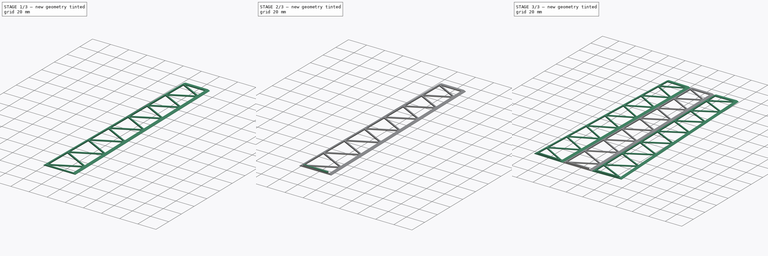
[diagram: build sequence overview — one tinted view per stage of 3, left to right]
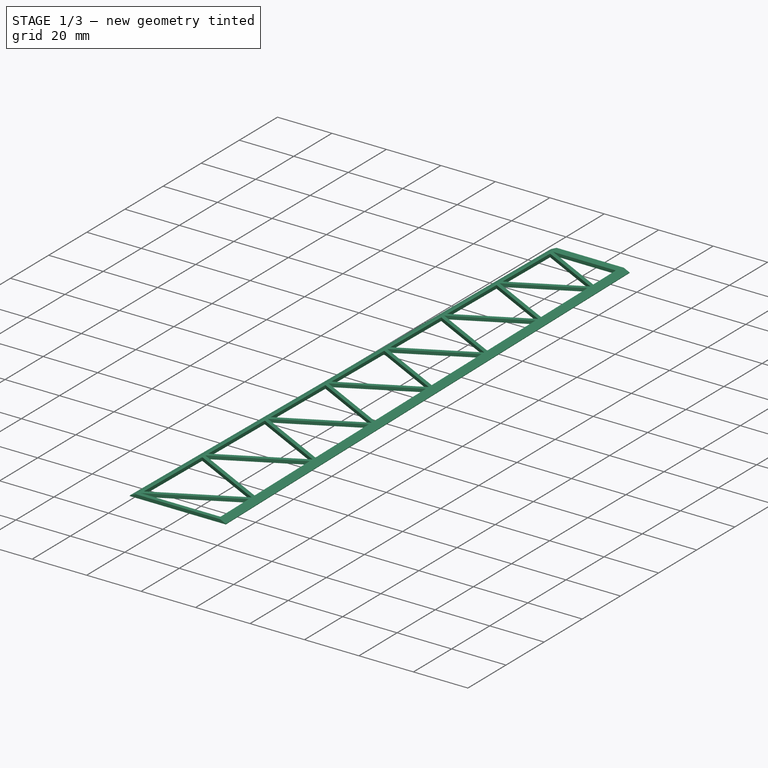
[diagram: stage 1 of 3 — iso view after this stage's code; geometry added in this stage tinted green]
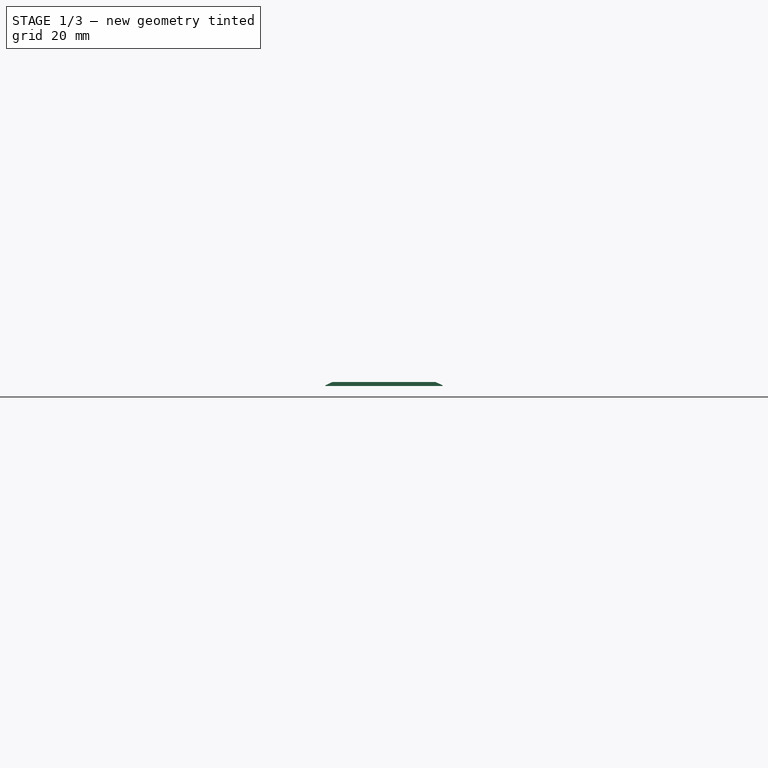
[diagram: stage 1 of 3 — front view after this stage's code; geometry added in this stage tinted green]
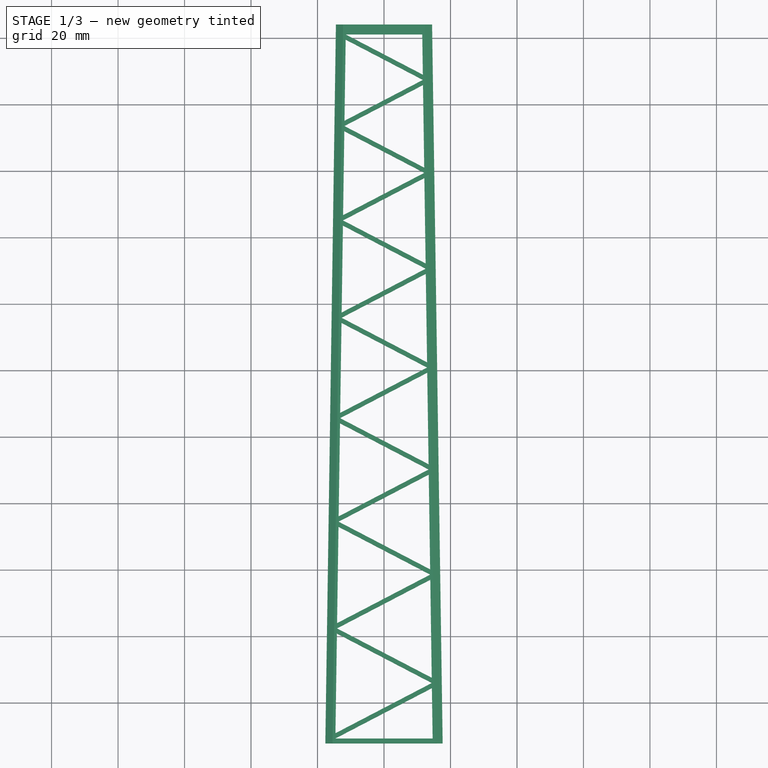
[diagram: stage 1 of 3 — top view after this stage's code; geometry added in this stage tinted green]
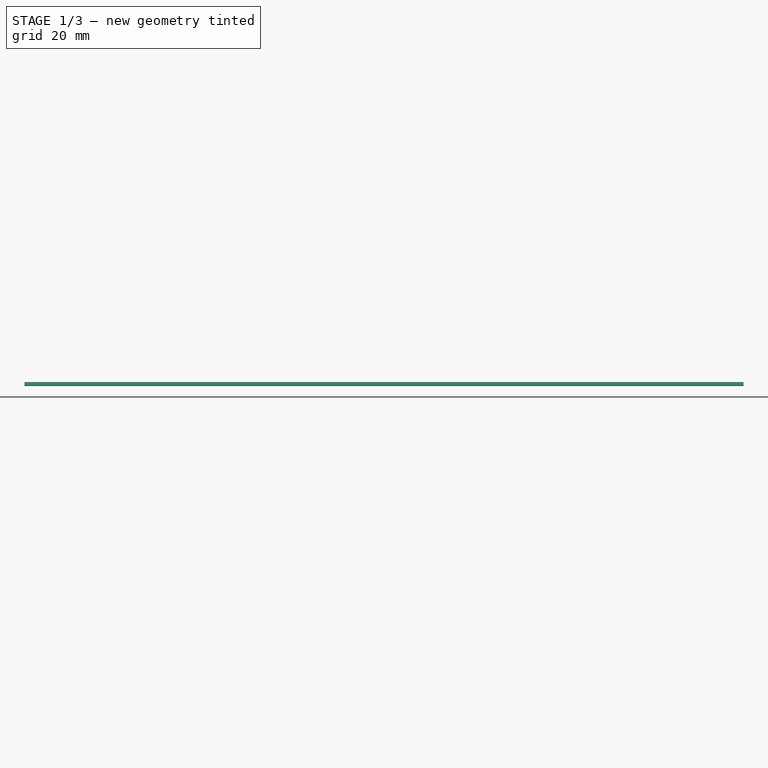
[diagram: stage 1 of 3 — right view after this stage's code; geometry added in this stage tinted green]
FCSTD DOCUMENT  (FreeCAD 1.0R39319 (Git))
Label: OMJK_30m_lystaarn_3
License: All rights reserved
LicenseURL: http://en.wikipedia.org/wiki/All_rights_reserved
objects: Sketcher::SketchObject×4, PartDesign::Body×2, PartDesign::Pad×2, PartDesign::Mirrored×2, Image::ImagePlane×1, App::VarSet×1, PartDesign::SubShapeBinder×1, PartDesign::Chamfer×1
note: 24 computed .brp shape members not serialized (recipe doc carries the construction recipe); baked Part::Feature solids carry a one-line shape summary decoded from their .brp

FEATURE [Image::ImagePlane] Taarn
  Placement = pos=(-63.4214,156.887,0) rot=(0,0,1;0.012217rad)
  XSize = 407.33
  YSize = 576.174
FEATURE [App::VarSet] VarSet
  IronLegWidth = 3
  IronSupportWidth = 1.5
  TowerBottomWidth = 45.5
  TowerHeight = 662.6
  TowerTopWidth = 25.97
  expr: TowerHeight = 353.87 + 308.73
FEATURE [Sketcher::SketchObject] Sketch  label="Basic Measurements"
  ArcFitTolerance = 1e-06
  AttachmentSupport = -> [XY_Plane]
  FullyConstrained = false
  MakeInternals = false
  MapMode = 5
  sketch-geometry (6):
    g0: LineSegment StartX=-22.75 StartY=0 StartZ=0 EndX=22.75 EndY=0 EndZ=0
    g1: LineSegment StartX=0 StartY=0 StartZ=0 EndX=0 EndY=353.87 EndZ=0
    g2: LineSegment StartX=-157.614 StartY=302.942 StartZ=0 EndX=-131.644 EndY=302.942 EndZ=0
    g3: LineSegment StartX=-144.629 StartY=302.942 StartZ=0 EndX=-143.643 EndY=-5.78841 EndZ=0
    g4: LineSegment StartX=-96.211 StartY=303.16 StartZ=0 EndX=-48.4821 EndY=303.16 EndZ=0
    g5: LineSegment StartX=-48.4821 StartY=327.388 StartZ=0 EndX=-48.4821 EndY=303.16 EndZ=0
  constraints (14):
    c: PointOnObject(g0,g-1)
    c: Coincident(g1,g-1)
    c: Vertical(g1)
    c: Symmetric(g0,g0,g1)
    c: DistanceX(g0,g0) = 45.5
    c: Horizontal(g2)
    c: DistanceX(g2,g2) = 25.97
    c: Symmetric(g2,g2,g3)
    c: DistanceY(g3,g3) = 308.73
    c: DistanceY(g1,g1) = 353.87
    c: Horizontal(g4)
    c: DistanceX(g4,g4) = 47.7289
    c: Coincident(g5,g4)
    c: DistanceY(g5,g5) = 24.2284
FEATURE [Sketcher::SketchObject] Sketch001  label="Basic Lattice Mast"
  ArcFitTolerance = 1e-06
  AttachmentSupport = -> [XY_Plane]
  FullyConstrained = true
  MakeInternals = false
  MapMode = 5
  expr: Constraints[128] = VarSet.IronSupportWidth
  expr: Constraints[56] = VarSet.IronSupportWidth * 2
  expr: Constraints[7] = VarSet.TowerTopWidth
  expr: Constraints[8] = VarSet.TowerBottomWidth
  expr: Constraints[91] = VarSet.IronSupportWidth * 2
  expr: Constraints[9] = VarSet.TowerHeight
  sketch-geometry (50):
    g0: LineSegment StartX=-22.75 StartY=0 StartZ=0 EndX=-12.985 EndY=662.6 EndZ=0
    g1: LineSegment StartX=-12.985 StartY=662.6 StartZ=0 EndX=12.985 EndY=662.6 EndZ=0
    g2: LineSegment StartX=12.985 StartY=662.6 StartZ=0 EndX=22.75 EndY=0 EndZ=0
    g3: LineSegment StartX=22.75 StartY=0 StartZ=0 EndX=-22.75 EndY=0 EndZ=0
    g4: LineSegment StartX=-22.7279 StartY=1.5 StartZ=0 EndX=22.3814 EndY=25.0125 EndZ=0
    g5: LineSegment StartX=22.3814 StartY=25.0125 StartZ=0 EndX=-22.0402 EndY=48.1665 EndZ=0
    g6: LineSegment StartX=-22.0402 StartY=48.1665 StartZ=0 EndX=21.7041 EndY=70.9675 EndZ=0
    g7: LineSegment StartX=21.7041 StartY=70.9675 StartZ=0 EndX=-21.3732 EndY=93.4209 EndZ=0
    g8: LineSegment [constr] StartX=22.3814 StartY=25.0125 StartZ=0 EndX=-22.3814 EndY=25.0125 EndZ=0
    g9: ArcOfCircle [constr] CenterX=22.3814 CenterY=25.0125 CenterZ=0 NormalX=0 NormalY=0 NormalZ=1 AngleXU=0 Radius=30 StartAngle=2.6611 EndAngle=3.62208
    g10: LineSegment [constr] StartX=-4.22167 StartY=38.8789 StartZ=0 EndX=-4.22167 EndY=11.1461 EndZ=0
    g11: LineSegment StartX=-21.3732 StartY=93.4209 StartZ=0 EndX=21.0474 EndY=115.532 EndZ=0
    g12: LineSegment StartX=21.0474 StartY=115.532 StartZ=0 EndX=-20.7265 EndY=137.306 EndZ=0
    g13: LineSegment StartX=-20.7265 StartY=137.306 StartZ=0 EndX=20.4105 EndY=158.748 EndZ=0
    g14: LineSegment StartX=20.4105 StartY=158.748 StartZ=0 EndX=-20.0993 EndY=179.863 EndZ=0
    g15: LineSegment StartX=-20.0993 StartY=179.863 StartZ=0 EndX=19.7929 EndY=200.656 EndZ=0
    g16: LineSegment StartX=19.7929 StartY=200.656 StartZ=0 EndX=-19.4911 EndY=221.132 EndZ=0
    g17: LineSegment StartX=-19.4469 StartY=224.132 StartZ=0 EndX=19.1504 EndY=244.25 EndZ=0
    g18: LineSegment StartX=19.1504 StartY=244.25 StartZ=0 EndX=-18.8584 EndY=264.062 EndZ=0
    g19: LineSegment StartX=-18.8584 StartY=264.062 StartZ=0 EndX=18.5709 EndY=283.571 EndZ=0
    g20: LineSegment StartX=18.5709 StartY=283.571 StartZ=0 EndX=-18.2878 EndY=302.783 EndZ=0
    g21: LineSegment StartX=-18.2878 StartY=302.783 StartZ=0 EndX=18.0089 EndY=321.702 EndZ=0
    g22: LineSegment StartX=18.0089 StartY=321.702 StartZ=0 EndX=-17.7344 EndY=340.333 EndZ=0
    g23: LineSegment StartX=-17.7344 StartY=340.333 StartZ=0 EndX=17.464 EndY=358.68 EndZ=0
    g24: LineSegment StartX=17.464 StartY=358.68 StartZ=0 EndX=-17.1977 EndY=376.747 EndZ=0
    g25: LineSegment StartX=-17.1977 StartY=376.747 StartZ=0 EndX=16.9355 EndY=394.538 EndZ=0
    g26: LineSegment StartX=16.9355 StartY=394.538 StartZ=0 EndX=-16.6773 EndY=412.058 EndZ=0
    g27: LineSegment StartX=-16.6773 StartY=412.058 StartZ=0 EndX=16.4231 EndY=429.311 EndZ=0
    g28: LineSegment StartX=16.4231 StartY=429.311 StartZ=0 EndX=-16.1727 EndY=446.301 EndZ=0
    g29: LineSegment StartX=-16.1285 StartY=449.301 StartZ=0 EndX=15.8826 EndY=465.987 EndZ=0
    g30: LineSegment StartX=15.8826 StartY=465.987 StartZ=0 EndX=-15.6404 EndY=482.417 EndZ=0
    g31: LineSegment StartX=-15.6404 StartY=482.417 StartZ=0 EndX=15.402 EndY=498.598 EndZ=0
    g32: LineSegment StartX=15.402 StartY=498.598 StartZ=0 EndX=-15.1671 EndY=514.531 EndZ=0
    g33: LineSegment StartX=-15.1671 StartY=514.531 StartZ=0 EndX=14.9359 EndY=530.222 EndZ=0
    g34: LineSegment StartX=14.9359 StartY=530.222 StartZ=0 EndX=-14.7082 EndY=545.674 EndZ=0
    g35: LineSegment StartX=-14.7082 StartY=545.674 StartZ=0 EndX=14.4839 EndY=560.89 EndZ=0
    g36: LineSegment StartX=14.4839 StartY=560.89 StartZ=0 EndX=-14.2631 EndY=575.874 EndZ=0
    g37: LineSegment StartX=-14.2631 StartY=575.874 StartZ=0 EndX=14.0457 EndY=590.629 EndZ=0
    g38: LineSegment StartX=14.0457 StartY=590.629 StartZ=0 EndX=-13.8315 EndY=605.16 EndZ=0
    g39: LineSegment StartX=-13.8315 StartY=605.16 StartZ=0 EndX=13.6206 EndY=619.469 EndZ=0
    g40: LineSegment StartX=13.6206 StartY=619.469 StartZ=0 EndX=-13.413 EndY=633.56 EndZ=0
    g41: LineSegment StartX=-13.413 StartY=633.56 StartZ=0 EndX=13.2085 EndY=647.436 EndZ=0
    g42: LineSegment StartX=13.2085 StartY=647.436 StartZ=0 EndX=-13.0071 EndY=661.1 EndZ=0
    g43: LineSegment StartX=-16.1506 StartY=447.801 StartZ=0 EndX=16.1506 EndY=447.801 EndZ=0
    g44: LineSegment StartX=-19.469 StartY=222.632 StartZ=0 EndX=19.469 EndY=222.632 EndZ=0
    g45: LineSegment StartX=-24 StartY=688.1 StartZ=0 EndX=-24 EndY=664.1 EndZ=0
    g46: LineSegment StartX=-24 StartY=664.1 StartZ=0 EndX=24 EndY=664.1 EndZ=0
    g47: LineSegment StartX=24 StartY=664.1 StartZ=0 EndX=24 EndY=688.1 EndZ=0
    g48: LineSegment StartX=24 StartY=688.1 StartZ=0 EndX=-24 EndY=688.1 EndZ=0
    g49: LineSegment StartX=-24 StartY=676.1 StartZ=0 EndX=24 EndY=676.1 EndZ=0
  constraints (149):
    c: Coincident(g0,g1)
    c: Coincident(g1,g2)
    c: Coincident(g2,g3)
    c: Coincident(g3,g0)
    c: Horizontal(g3)
    c: Symmetric(g0,g2,g-1)
    c: Symmetric(g1,g0,g-2)
    c: DistanceX(g1,g1) = 25.97
    c: DistanceX(g3,g3) = 45.5
    c: DistanceY(g-1,g1) = 662.6
    c: Coincident(g4,g5)
    c: Coincident(g5,g6)
    c: Coincident(g6,g7)
    c: Coincident(g8,g4)
    c: PointOnObject(g8,g0)
    c: Horizontal(g8)
    c: Coincident(g9,g4)
    c: PointOnObject(g9,g5)
    c: PointOnObject(g9,g4)
    c: Coincident(g10,g9)
    c: Coincident(g10,g9)
    c: Vertical(g10)
    c: Parallel(g4,g6)
    c: Parallel(g7,g5)
    c: PointOnObject(g7,g0)
    c: PointOnObject(g5,g0)
    c: PointOnObject(g4,g0)
    c: PointOnObject(g6,g2)
    c: PointOnObject(g4,g2) = 1.5
    c: DistanceY(g0,g4) = 1.5
    c: Coincident(g11,g12)
    c: Coincident(g12,g13)
    c: Coincident(g13,g14)
    c: Parallel(g6,g11)
    c: Parallel(g11,g13)
    c: Parallel(g14,g12)
    c: Parallel(g12,g7)
    c: Coincident(g11,g7)
    c: PointOnObject(g12,g0)
    c: PointOnObject(g14,g0)
    c: PointOnObject(g13,g2)
    c: PointOnObject(g11,g2)
    c: Coincident(g14,g15)
    c: Coincident(g15,g16)
    c: Parallel(g14,g16)
    c: Parallel(g15,g13)
    c: PointOnObject(g16,g0)
    c: PointOnObject(g15,g2)
    c: Coincident(g17,g18)
    c: Coincident(g18,g19)
    c: Coincident(g19,g20)
    c: Parallel(g20,g18)
    c: Parallel(g18,g16)
    c: Parallel(g15,g17)
    c: Parallel(g17,g19)
    c: PointOnObject(g17,g0)
    c: DistanceY(g16,g17) = 3
    c: PointOnObject(g18,g0)
    c: PointOnObject(g17,g2)
    c: PointOnObject(g19,g2)
    c: PointOnObject(g20,g0)
    c: Coincident(g21,g22)
    c: Coincident(g22,g23)
    c: Parallel(g19,g21)
    c: Parallel(g21,g23)
    c: Parallel(g20,g22)
    c: Coincident(g21,g20)
    c: PointOnObject(g22,g0)
    c: PointOnObject(g21,g2)
    c: PointOnObject(g23,g2)
    c: Coincident(g24,g25)
    c: Coincident(g25,g26)
    c: Coincident(g26,g27)
    c: Coincident(g27,g28)
    c: Parallel(g27,g25)
    c: Parallel(g25,g23)
    c: Parallel(g28,g26)
    c: Parallel(g26,g22)
    c: Coincident(g24,g23)
    c: PointOnObject(g24,g0)
    c: PointOnObject(g25,g2)
    c: Parallel(g24,g22)
    c: PointOnObject(g26,g0)
    c: PointOnObject(g27,g2)
    c: PointOnObject(g28,g0)
    c: Coincident(g29,g30)
    c: Parallel(g27,g29)
    c: Parallel(g30,g28)
    c: PointOnObject(g29,g0)
    c: PointOnObject(g30,g0)
    c: PointOnObject(g29,g2)
    c: DistanceY(g28,g29) = 3
    c: Coincident(g31,g32)
    c: Coincident(g33,g34)
    c: Coincident(g35,g36)
    c: Parallel(g32,g34)
    c: Parallel(g34,g36)
    c: Parallel(g36,g30)
    c: Parallel(g29,g31)
    c: Parallel(g31,g33)
    c: Parallel(g33,g35)
    c: Coincident(g32,g33)
    c: Coincident(g31,g30)
    c: PointOnObject(g31,g2)
    c: PointOnObject(g32,g0)
    c: PointOnObject(g33,g2)
    c: PointOnObject(g34,g0)
    c: Coincident(g35,g34)
    c: PointOnObject(g35,g2)
    c: PointOnObject(g36,g0)
    c: Coincident(g37,g38)
    c: Coincident(g39,g40)
    c: Parallel(g35,g37)
    c: Parallel(g37,g39)
    c: Parallel(g40,g38)
    c: Parallel(g38,g36)
    c: Coincident(g37,g36)
    c: PointOnObject(g37,g2)
    c: PointOnObject(g38,g0)
    c: Coincident(g39,g38)
    c: PointOnObject(g40,g0)
    c: PointOnObject(g39,g2)
    c: Coincident(g40,g41)
    c: Coincident(g41,g42)
    c: Parallel(g40,g42)
    c: Parallel(g41,g39)
    c: PointOnObject(g41,g2)
    c: PointOnObject(g42,g0)
    c: DistanceY(g42,g0) = 1.5
    c: Radius(g9) = 30
    c: Horizontal(g43)
    c: PointOnObject(g43,g2)
    c: Symmetric(g28,g29,g43)
    c: Horizontal(g44)
    c: PointOnObject(g44,g2)
    c: Symmetric(g16,g17,g44)
    c: Coincident(g45,g46)
    c: Coincident(g46,g47)
    c: Coincident(g47,g48)
    c: Coincident(g48,g45)
    c: Vertical(g45)
    c: Vertical(g47)
    c: Horizontal(g48)
    c: Symmetric(g46,g45,g-2)
    c: DistanceX(g48,g48) = 48
    c: DistanceY(g45,g45) = 24
    c: Symmetric(g45,g45,g49)
    c: Symmetric(g49,g49,g-2)
    c: DistanceY(g0,g45) = 1.5
FEATURE [PartDesign::Body] Body
  AllowCompound = true
  Group = -> [Sketch,Sketch001]
  Origin = -> Origin
FEATURE [PartDesign::SubShapeBinder] Binder
  BindCopyOnChange = 0
  BindMode = 0
  ClaimChildren = false
  Context = -> Body001 [Binder.]
  Fuse = false
  MakeFace = true
  OffsetFill = false
  OffsetIntersection = false
  OffsetJoinType = 0
  OffsetOpenResult = false
  PartialLoad = false
  Refine = true
  Relative = true
  Support = -> [Body[Sketch001.]]
  _Version = 2
FEATURE [Sketcher::SketchObject] Sketch002
  ArcFitTolerance = 1e-06
  AttachmentSupport = -> [XY_Plane001]
  ExternalGeometry = -> [Binder]
  FullyConstrained = true
  MakeInternals = false
  MapMode = 5
  expr: Constraints[11] = VarSet.IronLegWidth / 2
  expr: Constraints[33] = VarSet.IronLegWidth
  sketch-geometry (52):
    g0: LineSegment StartX=-17.6509 StartY=447.801 StartZ=0 EndX=-14.4632 EndY=664.1 EndZ=0
    g1: LineSegment StartX=-14.4632 StartY=664.1 StartZ=0 EndX=14.4632 EndY=664.1 EndZ=0
    g2: LineSegment StartX=14.4632 StartY=664.1 StartZ=0 EndX=17.6509 EndY=447.801 EndZ=0
    g3: LineSegment StartX=-17.6509 StartY=447.801 StartZ=0 EndX=17.6509 EndY=447.801 EndZ=0
    g4: LineSegment [constr] StartX=-12.985 StartY=662.6 StartZ=0 EndX=-14.485 EndY=662.622 EndZ=0
    g5: LineSegment [constr] StartX=-12.985 StartY=662.6 StartZ=0 EndX=-12.985 EndY=664.1 EndZ=0
    g6: LineSegment StartX=11.5068 StartY=661.1 StartZ=0 EndX=-11.5068 EndY=661.1 EndZ=0
    g7: LineSegment StartX=-11.5068 StartY=661.1 StartZ=0 EndX=11.6849 EndY=649.012 EndZ=0
    g8: LineSegment StartX=11.6849 StartY=649.012 StartZ=0 EndX=11.5068 EndY=661.1 EndZ=0
    g9: LineSegment StartX=-11.5297 StartY=659.548 StartZ=0 EndX=11.7082 EndY=647.436 EndZ=0
    g10: LineSegment StartX=11.7082 StartY=647.436 StartZ=0 EndX=-11.8894 EndY=635.136 EndZ=0
    g11: LineSegment StartX=-11.8894 StartY=635.136 StartZ=0 EndX=-11.5297 EndY=659.548 EndZ=0
    g12: LineSegment [constr] StartX=-11.5297 StartY=659.548 StartZ=0 EndX=-14.5297 EndY=659.592 EndZ=0
    g13: LineSegment StartX=11.731 StartY=645.883 StartZ=0 EndX=-11.9127 EndY=633.56 EndZ=0
    g14: LineSegment StartX=-11.9127 StartY=633.56 StartZ=0 EndX=12.0971 EndY=621.045 EndZ=0
    g15: LineSegment StartX=12.0971 StartY=621.045 StartZ=0 EndX=11.731 EndY=645.883 EndZ=0
    g16: LineSegment StartX=-11.9355 StartY=632.007 StartZ=0 EndX=12.1203 EndY=619.469 EndZ=0
    g17: LineSegment StartX=12.1203 StartY=619.469 StartZ=0 EndX=-12.308 EndY=606.736 EndZ=0
    g18: LineSegment StartX=-12.308 StartY=606.736 StartZ=0 EndX=-11.9355 EndY=632.007 EndZ=0
    g19: LineSegment StartX=12.1432 StartY=617.917 StartZ=0 EndX=-12.3312 EndY=605.16 EndZ=0
    g20: LineSegment StartX=-12.3312 StartY=605.16 StartZ=0 EndX=12.5221 EndY=592.205 EndZ=0
    g21: LineSegment StartX=12.5221 StartY=592.205 StartZ=0 EndX=12.1432 EndY=617.917 EndZ=0
    g22: LineSegment StartX=-12.3541 StartY=603.608 StartZ=0 EndX=12.5453 EndY=590.629 EndZ=0
    g23: LineSegment StartX=12.5453 StartY=590.629 StartZ=0 EndX=-12.7396 EndY=577.45 EndZ=0
    g24: LineSegment StartX=-12.7396 StartY=577.45 StartZ=0 EndX=-12.3541 EndY=603.608 EndZ=0
    g25: LineSegment StartX=12.5682 StartY=589.077 StartZ=0 EndX=-12.7628 EndY=575.874 EndZ=0
    g26: LineSegment StartX=-12.7628 StartY=575.874 StartZ=0 EndX=12.9604 EndY=562.466 EndZ=0
    g27: LineSegment StartX=12.9604 StartY=562.466 StartZ=0 EndX=12.5682 EndY=589.077 EndZ=0
    g28: LineSegment StartX=-12.7857 StartY=574.321 StartZ=0 EndX=12.9836 EndY=560.89 EndZ=0
    g29: LineSegment StartX=12.9836 StartY=560.89 StartZ=0 EndX=-13.1846 EndY=547.25 EndZ=0
    g30: LineSegment StartX=-13.1846 StartY=547.25 StartZ=0 EndX=-12.7857 EndY=574.321 EndZ=0
    g31: LineSegment StartX=-13.2079 StartY=545.674 StartZ=0 EndX=13.0065 EndY=559.338 EndZ=0
    g32: LineSegment StartX=13.0065 StartY=559.338 StartZ=0 EndX=13.4124 EndY=531.798 EndZ=0
    g33: LineSegment StartX=13.4124 StartY=531.798 StartZ=0 EndX=-13.2079 EndY=545.674 EndZ=0
    g34: LineSegment StartX=-13.2307 StartY=544.122 StartZ=0 EndX=-13.6436 EndY=516.108 EndZ=0
    g35: LineSegment StartX=-13.6436 StartY=516.108 StartZ=0 EndX=13.4356 EndY=530.222 EndZ=0
    g36: LineSegment StartX=13.4356 StartY=530.222 StartZ=0 EndX=-13.2307 EndY=544.122 EndZ=0
    g37: LineSegment StartX=13.4585 StartY=528.67 StartZ=0 EndX=-13.6668 EndY=514.531 EndZ=0
    g38: LineSegment StartX=-13.6668 StartY=514.531 StartZ=0 EndX=13.8784 EndY=500.174 EndZ=0
    g39: LineSegment StartX=13.8784 StartY=500.174 StartZ=0 EndX=13.4585 EndY=528.67 EndZ=0
    g40: LineSegment StartX=-13.6897 StartY=512.979 StartZ=0 EndX=13.9016 EndY=498.598 EndZ=0
    g41: LineSegment StartX=13.9016 StartY=498.598 StartZ=0 EndX=-14.1169 EndY=483.994 EndZ=0
    g42: LineSegment StartX=-14.1169 StartY=483.994 StartZ=0 EndX=-13.6897 EndY=512.979 EndZ=0
    g43: LineSegment StartX=13.9245 StartY=497.046 StartZ=0 EndX=-14.1401 EndY=482.417 EndZ=0
    g44: LineSegment StartX=-14.1401 StartY=482.417 StartZ=0 EndX=14.359 EndY=467.563 EndZ=0
    g45: LineSegment StartX=14.359 StartY=467.563 StartZ=0 EndX=13.9245 EndY=497.046 EndZ=0
    g46: LineSegment StartX=-14.163 StartY=480.865 StartZ=0 EndX=14.3822 EndY=465.987 EndZ=0
    g47: LineSegment StartX=14.3822 StartY=465.987 StartZ=0 EndX=-14.6049 EndY=450.877 EndZ=0
    g48: LineSegment StartX=-14.6049 StartY=450.877 StartZ=0 EndX=-14.163 EndY=480.865 EndZ=0
    g49: LineSegment StartX=-14.6281 StartY=449.301 StartZ=0 EndX=14.4051 EndY=464.434 EndZ=0
    g50: LineSegment StartX=14.4051 StartY=464.434 StartZ=0 EndX=14.6281 EndY=449.301 EndZ=0
    g51: LineSegment StartX=14.6281 StartY=449.301 StartZ=0 EndX=-14.6281 EndY=449.301 EndZ=0
  constraints (154):
    c: Coincident(g0,g1)
    c: Coincident(g1,g2)
    c: Coincident(g3,g0)
    c: Coincident(g3,g2)
    c: Horizontal(g3)
    c: Parallel(g0,g-8)
    c: Parallel(g2,g-7)
    c: Symmetric(g1,g0,g-2)
    c: Coincident(g4,g-8)
    c: PointOnObject(g4,g0)
    c: Perpendicular(g0,g4)
    c: DistanceX(g4,g4) = 1.5
    c: Coincident(g5,g4)
    c: PointOnObject(g5,g1)
    c: Perpendicular(g5,g1)
    c: Equal(g5,g4)
    c: Coincident(g6,g7)
    c: Coincident(g7,g8)
    c: Coincident(g8,g6)
    c: Coincident(g9,g10)
    c: Coincident(g10,g11)
    c: Coincident(g11,g9)
    c: Parallel(g9,g7)
    c: Parallel(g7,g-3)
    c: Parallel(g11,g-8)
    c: Parallel(g10,g-4)
    c: Horizontal(g9,g-4)
    c: Parallel(g8,g-7)
    c: Horizontal(g6,g-3)
    c: PointOnObject(g6,g11)
    c: Coincident(g12,g9)
    c: PointOnObject(g12,g0)
    c: Perpendicular(g0,g12)
    c: DistanceX(g12,g12) = 3
    c: Symmetric(g6,g6,g-2)
    c: PointOnObject(g9,g8)
    c: Coincident(g13,g14)
    c: Coincident(g14,g15)
    c: Coincident(g15,g13)
    c: Coincident(g16,g17)
    c: Coincident(g17,g18)
    c: Coincident(g18,g16)
    c: Parallel(g18,g-8)
    c: Parallel(g15,g-7)
    c: Horizontal(g13,g-6)
    c: Horizontal(g16,g-9)
    c: PointOnObject(g16,g15)
    c: PointOnObject(g13,g18)
    c: PointOnObject(g13,g11)
    c: PointOnObject(g13,g8)
    c: Parallel(g13,g-4)
    c: Parallel(g14,g-6)
    c: Parallel(g16,g-6)
    c: Parallel(g17,g-9)
    c: Coincident(g19,g20)
    c: Coincident(g20,g21)
    c: Coincident(g21,g19)
    c: Coincident(g22,g23)
    c: Coincident(g23,g24)
    c: Coincident(g24,g22)
    c: Coincident(g25,g26)
    c: Coincident(g26,g27)
    c: Coincident(g27,g25)
    c: Horizontal(g19,g-10)
    c: Horizontal(g22,g-11)
    c: Horizontal(g25,g-12)
    c: Parallel(g19,g-9)
    c: Parallel(g21,g-7)
    c: Parallel(g20,g-10)
    c: Parallel(g-10,g22)
    c: Parallel(g24,g-8)
    c: Parallel(g23,g-11)
    c: Parallel(g25,g-11)
    c: Parallel(g27,g-7)
    c: Parallel(g26,g-12)
    c: PointOnObject(g19,g18)
    c: PointOnObject(g22,g18)
    c: PointOnObject(g25,g24)
    c: PointOnObject(g19,g15)
    c: PointOnObject(g22,g21)
    c: PointOnObject(g25,g21)
    c: Coincident(g28,g29)
    c: Coincident(g29,g30)
    c: Coincident(g30,g28)
    c: Coincident(g31,g32)
    c: Coincident(g32,g33)
    c: Coincident(g33,g31)
    c: Coincident(g34,g35)
    c: Coincident(g35,g36)
    c: Coincident(g36,g34)
    c: Coincident(g37,g38)
    c: Coincident(g38,g39)
    c: Coincident(g39,g37)
    c: Horizontal(g28,g-13)
    c: Horizontal(g31,g-14)
    c: Horizontal(g35,g-15)
    c: Horizontal(g37,g-16)
    c: Parallel(g30,g34)
    c: Parallel(g34,g-8)
    c: Parallel(g32,g39)
    c: Parallel(g39,g-7)
    c: Parallel(g31,g-13)
    c: Parallel(g-13,g29)
    c: Parallel(g28,g-12)
    c: Parallel(g33,g-14)
    c: Parallel(g-14,g36)
    c: Parallel(g37,g35)
    c: Parallel(g35,g-15)
    c: Parallel(g38,g-16)
    c: PointOnObject(g28,g27)
    c: PointOnObject(g31,g27)
    c: PointOnObject(g35,g32)
    c: PointOnObject(g37,g32)
    c: PointOnObject(g28,g24)
    c: PointOnObject(g31,g30)
    c: PointOnObject(g34,g30)
    c: PointOnObject(g37,g34)
    c: Coincident(g40,g41)
    c: Coincident(g41,g42)
    c: Coincident(g42,g40)
    c: Coincident(g43,g44)
    c: Coincident(g44,g45)
    c: Coincident(g45,g43)
    c: Coincident(g46,g47)
    c: Coincident(g47,g48)
    c: Coincident(g48,g46)
    c: Coincident(g49,g50)
    c: Coincident(g50,g51)
    c: Coincident(g51,g49)
    c: Horizontal(g51)
    c: Parallel(g40,g-16)
    c: Parallel(g41,g-17)
    c: Parallel(g42,g-8)
    c: Parallel(g43,g-17)
    c: Parallel(g44,g-18)
    c: Parallel(g45,g-7)
    c: Parallel(g46,g-18)
    c: Parallel(g47,g-19)
    c: Parallel(g48,g-8)
    c: Parallel(g49,g-19)
    c: Parallel(g50,g-7)
    c: Horizontal(g40,g-17)
    c: Horizontal(g43,g-18)
    c: Horizontal(g46,g-19)
    c: Horizontal(g49,g-19)
    c: PointOnObject(g40,g34)
    c: PointOnObject(g40,g39)
    c: PointOnObject(g43,g39)
    c: PointOnObject(g43,g42)
    c: PointOnObject(g46,g42)
    c: PointOnObject(g46,g45)
    c: PointOnObject(g49,g48)
    c: PointOnObject(g49,g45)
    c: Horizontal(g0,g-20)
FEATURE [PartDesign::Pad] Pad
  Direction = (0,0,1)
  Length = 1.2
  Length2 = 10
  Profile = -> Sketch002
  ReferenceAxis = -> Sketch002 [N_Axis]
  Refine = true
  Suppressed = false
  Type = 0
FEATURE [PartDesign::Chamfer] Chamfer
  Angle = 65
  Base = -> Pad [Edge4,Edge10]
  BaseFeature = -> Pad
  ChamferType = 2
  FlipDirection = false
  Refine = true
  Size = 1
  Size2 = 1
  SupportTransform = false
  Suppressed = false
  UseAllEdges = false
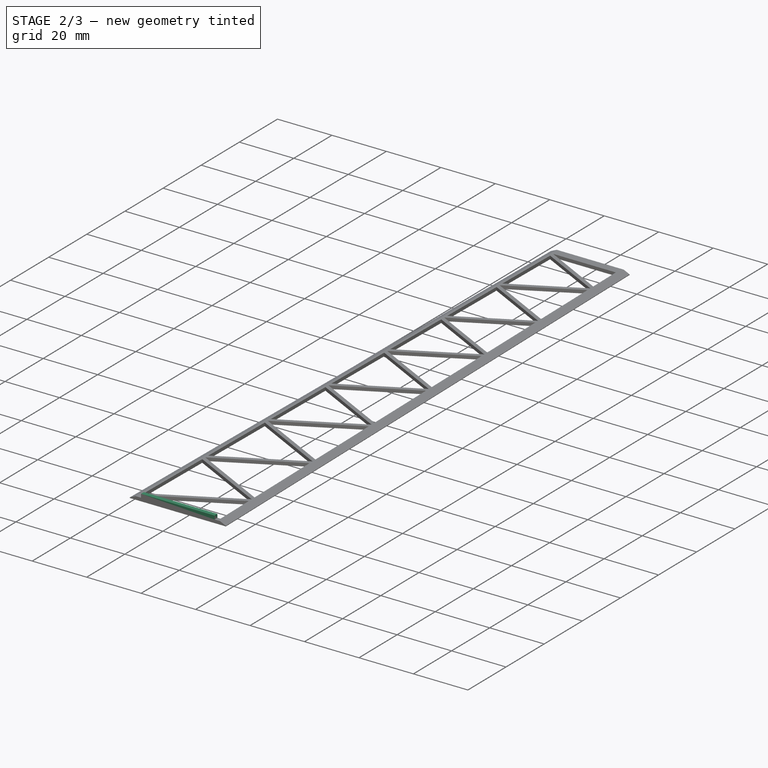
[diagram: stage 2 of 3 — iso view after this stage's code; geometry added in this stage tinted green]
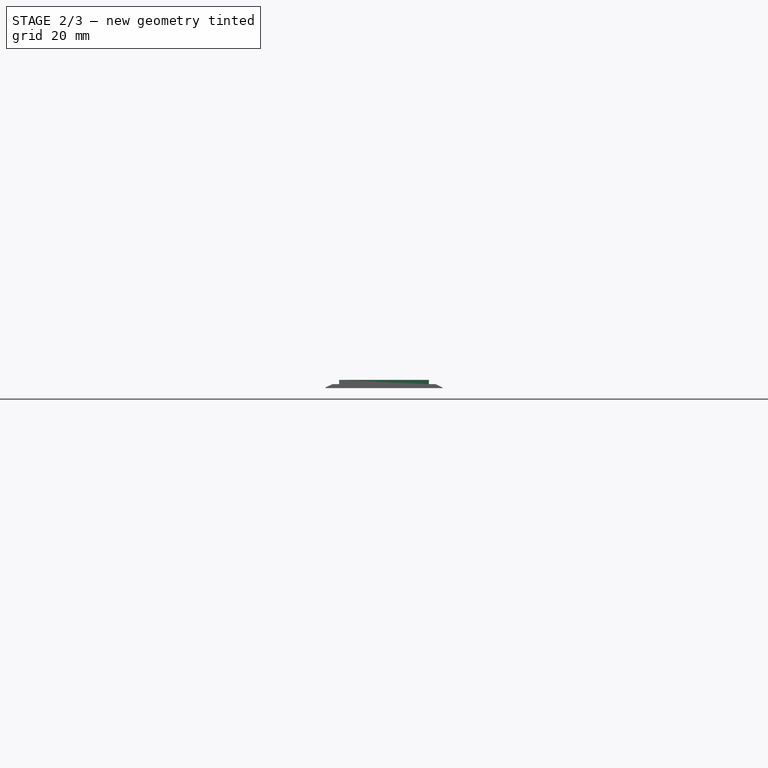
[diagram: stage 2 of 3 — front view after this stage's code; geometry added in this stage tinted green]
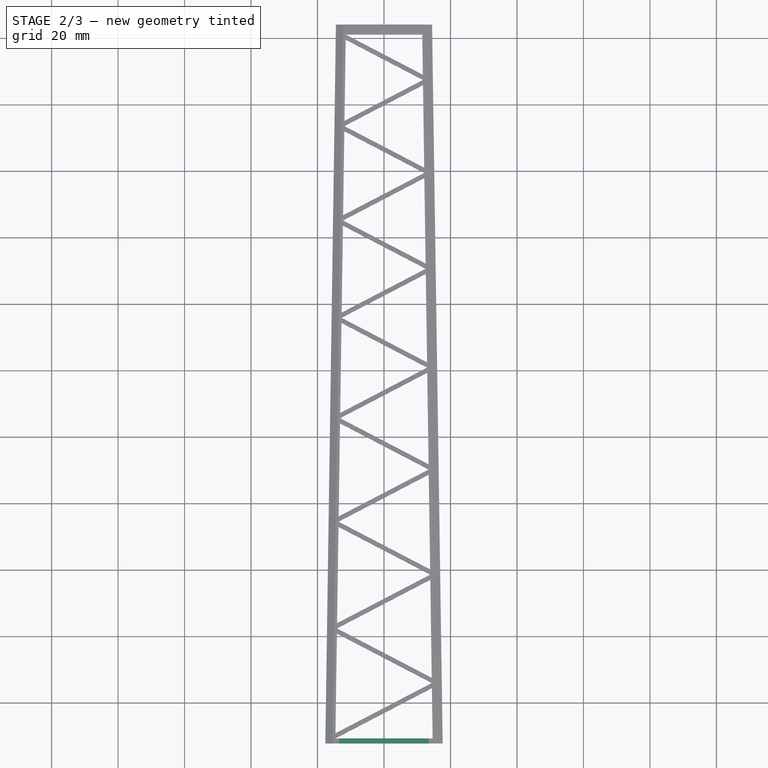
[diagram: stage 2 of 3 — top view after this stage's code; geometry added in this stage tinted green]
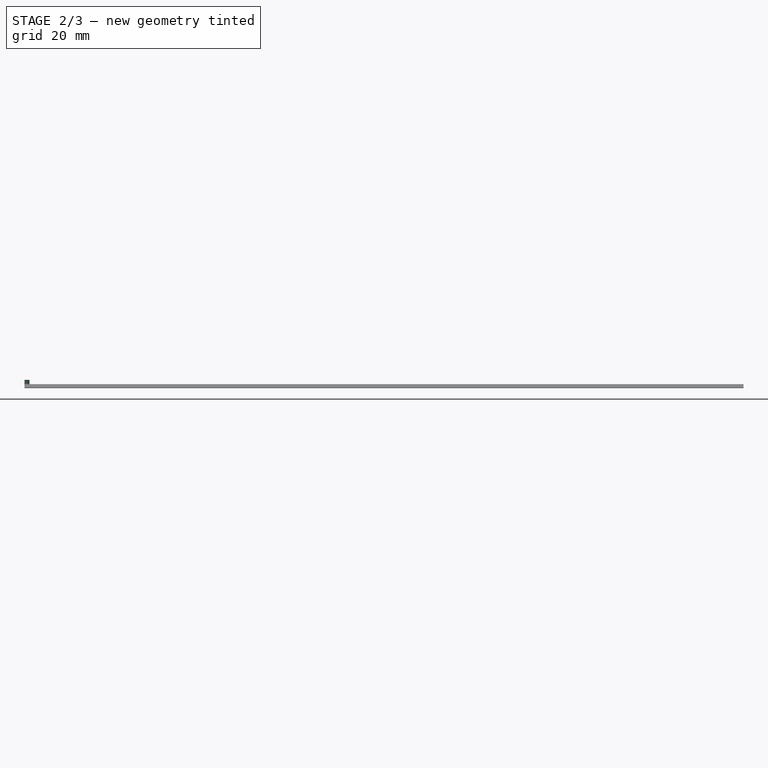
[diagram: stage 2 of 3 — right view after this stage's code; geometry added in this stage tinted green]
FEATURE [Sketcher::SketchObject] Sketch013
  ArcFitTolerance = 1e-06
  AttachmentSupport = -> [Chamfer]
  ExternalGeometry = -> [Chamfer]
  FullyConstrained = true
  MakeInternals = false
  MapMode = 5
  Placement = pos=(0,447.801,0) rot=(1,0,0;1.5708rad)
  sketch-geometry (4):
    g0: LineSegment StartX=-13.5062 StartY=2.5 StartZ=0 EndX=-13.5062 EndY=0 EndZ=0
    g1: LineSegment StartX=-13.5062 StartY=0 StartZ=0 EndX=13.5062 EndY=0 EndZ=0
    g2: LineSegment StartX=13.5062 StartY=0 StartZ=0 EndX=13.5062 EndY=2.5 EndZ=0
    g3: LineSegment StartX=13.5062 StartY=2.5 StartZ=0 EndX=-13.5062 EndY=2.5 EndZ=0
  constraints (11):
    c: Coincident(g0,g1)
    c: Coincident(g1,g2)
    c: Coincident(g2,g3)
    c: Coincident(g3,g0)
    c: Vertical(g0)
    c: Vertical(g2)
    c: Horizontal(g1)
    c: Horizontal(g3)
    c: Symmetric(g1,g1,g-1)
    c: Distance(g0,g0) = 2.5
    c: DistanceX(g-3,g0) = 2
FEATURE [PartDesign::Pad] Pad002
  BaseFeature = -> Chamfer
  Direction = (0,-1,2e-16)
  Length = 1.5
  Length2 = 10
  Profile = -> Sketch013
  ReferenceAxis = -> Sketch013 [N_Axis]
  Refine = true
  Reversed = true
  Suppressed = false
  Type = 0
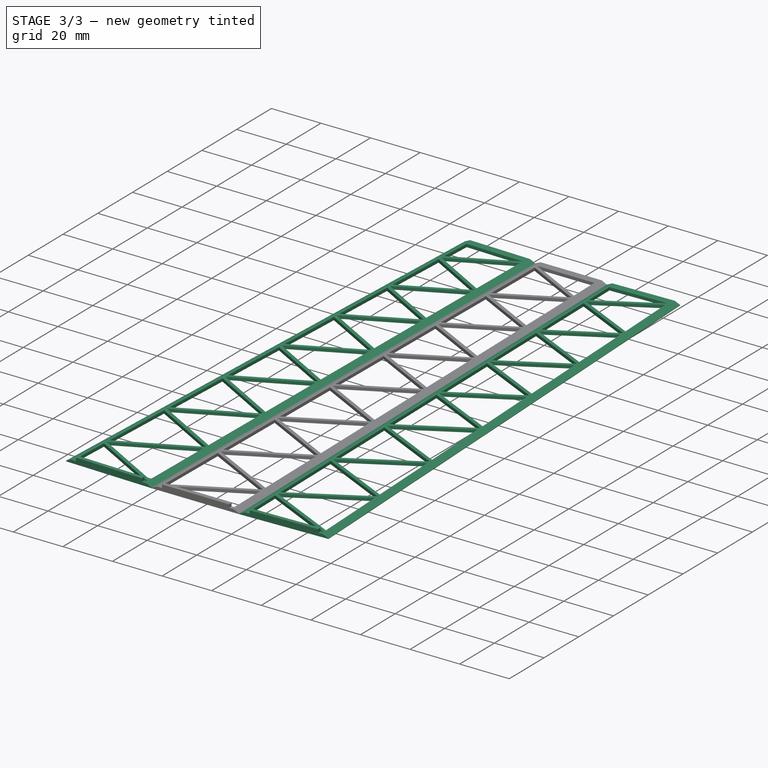
[diagram: stage 3 of 3 — iso view after this stage's code; geometry added in this stage tinted green]
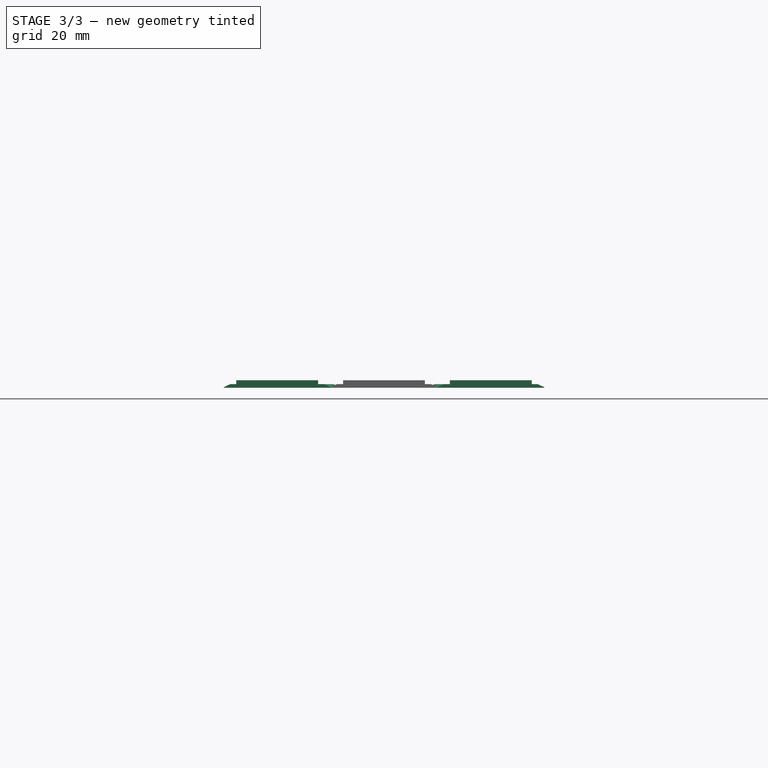
[diagram: stage 3 of 3 — front view after this stage's code; geometry added in this stage tinted green]
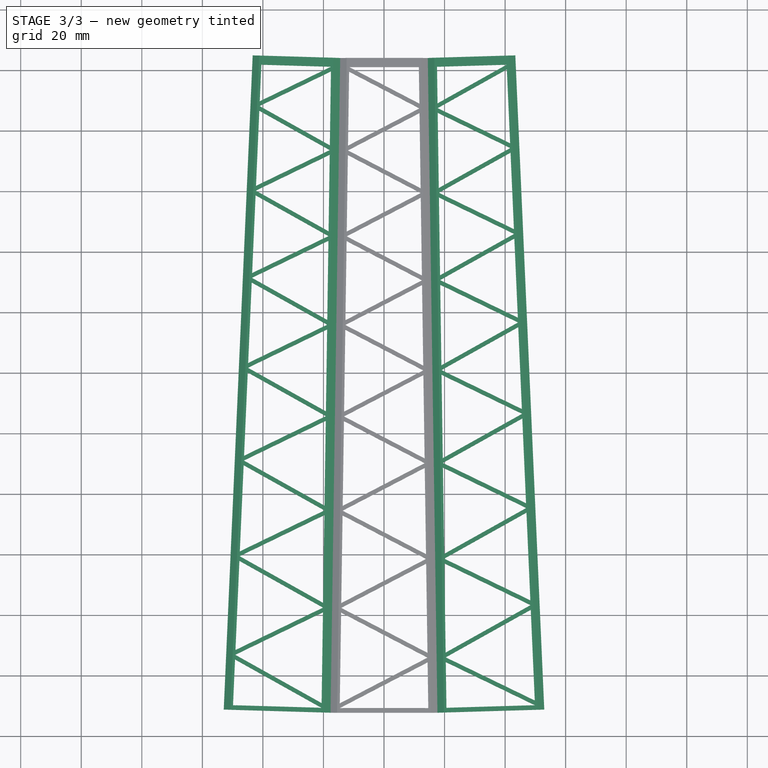
[diagram: stage 3 of 3 — top view after this stage's code; geometry added in this stage tinted green]
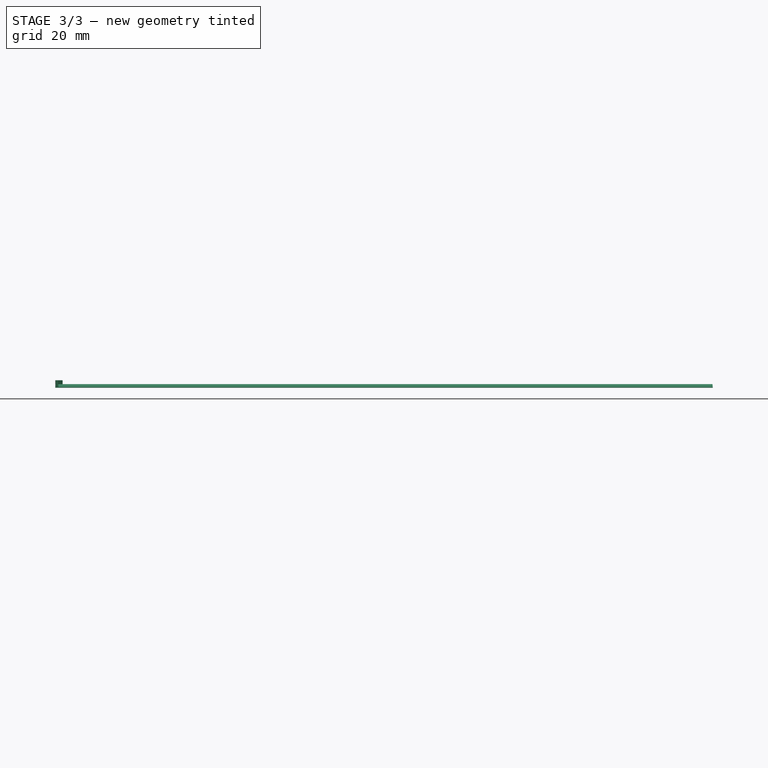
[diagram: stage 3 of 3 — right view after this stage's code; geometry added in this stage tinted green]
FEATURE [PartDesign::Mirrored] Mirrored
  BaseFeature = -> Pad002
  MirrorPlane = -> Pad002 [Face5]
  Originals = -> [Pad002]
  Refine = true
  Suppressed = false
  TransformMode = 1
FEATURE [PartDesign::Mirrored] Mirrored001
  BaseFeature = -> Mirrored
  MirrorPlane = -> Mirrored [Face1]
  Originals = -> [Pad,Chamfer,Pad002]
  Refine = true
  Suppressed = false
  TransformMode = 0
FEATURE [PartDesign::Body] Body001  label="TowerTopSection"
  AllowCompound = true
  Group = -> [Binder,Sketch002,Pad,Chamfer,Sketch013,Pad002,Mirrored,Mirrored001]
  Origin = -> Origin001
  Tip = -> Mirrored001
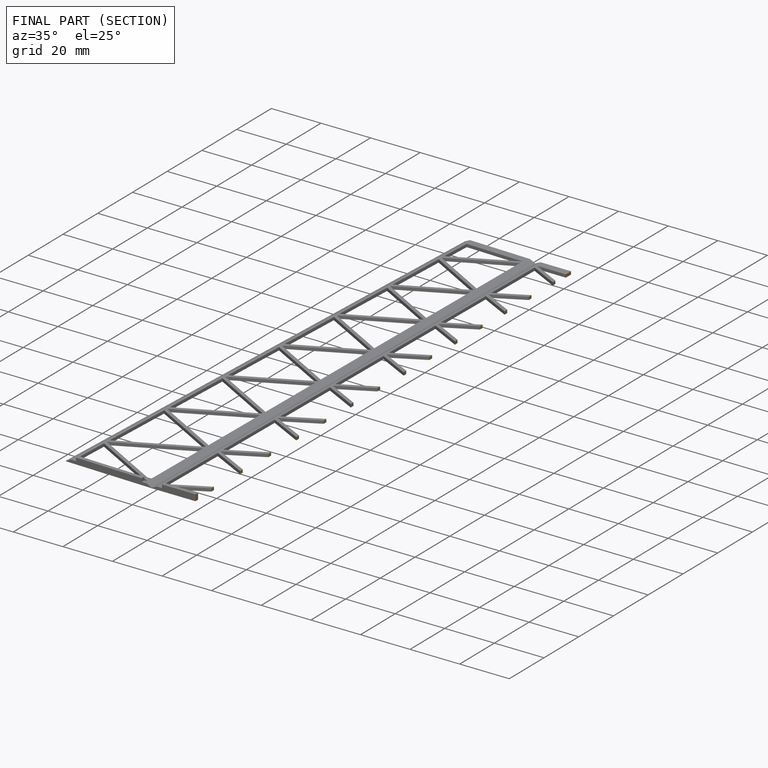
[diagram: finished part — half-section view (interior)]
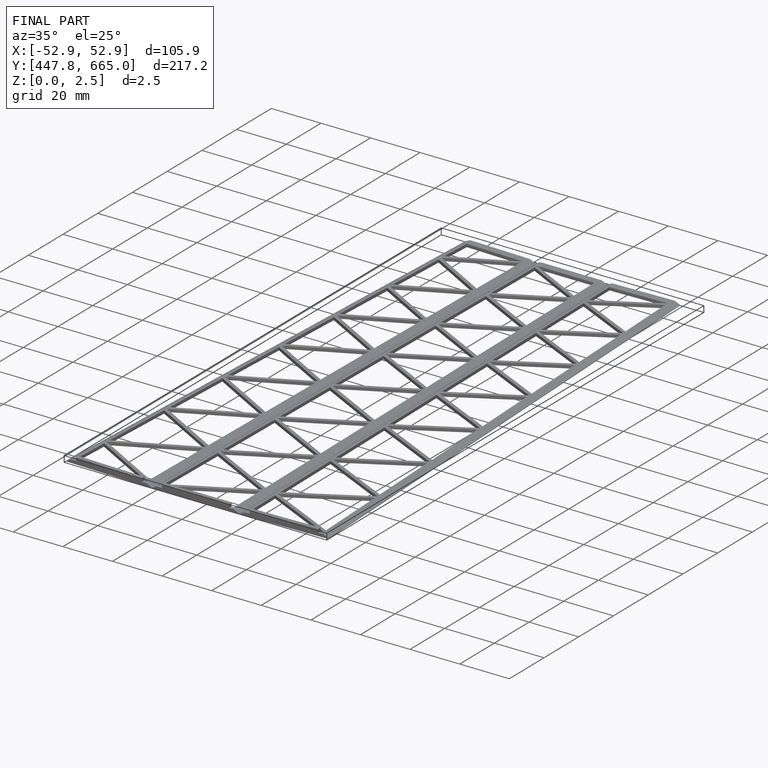
[diagram: finished part — iso view with bounding-box wireframe]
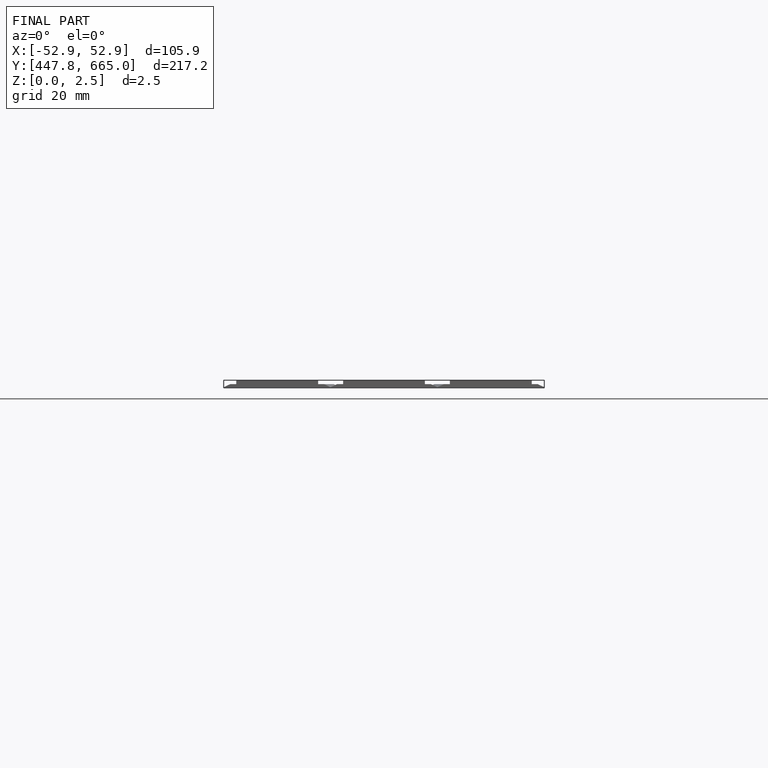
[diagram: finished part — front view with bounding-box wireframe]
